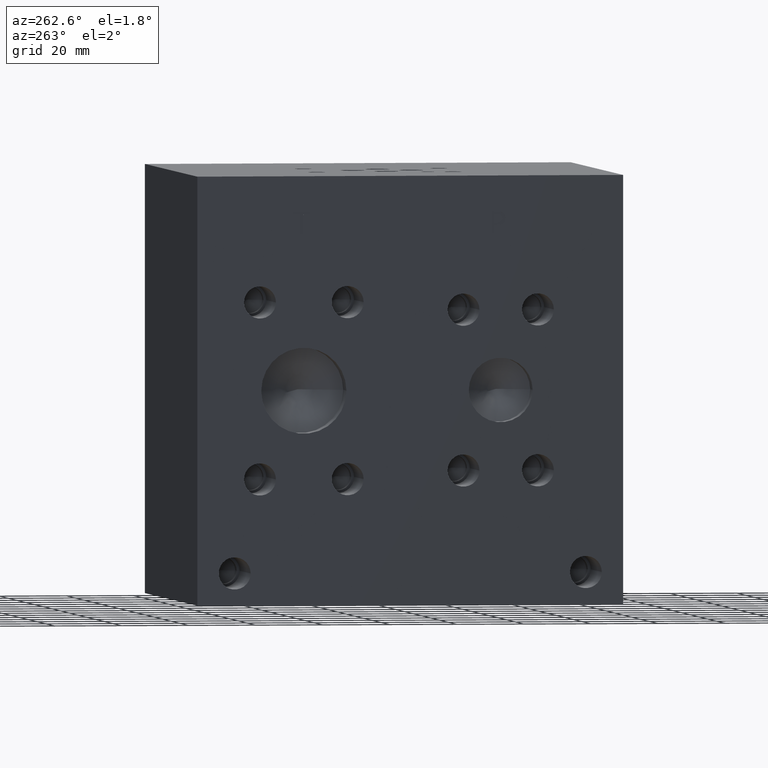
[diagram: clean part render]
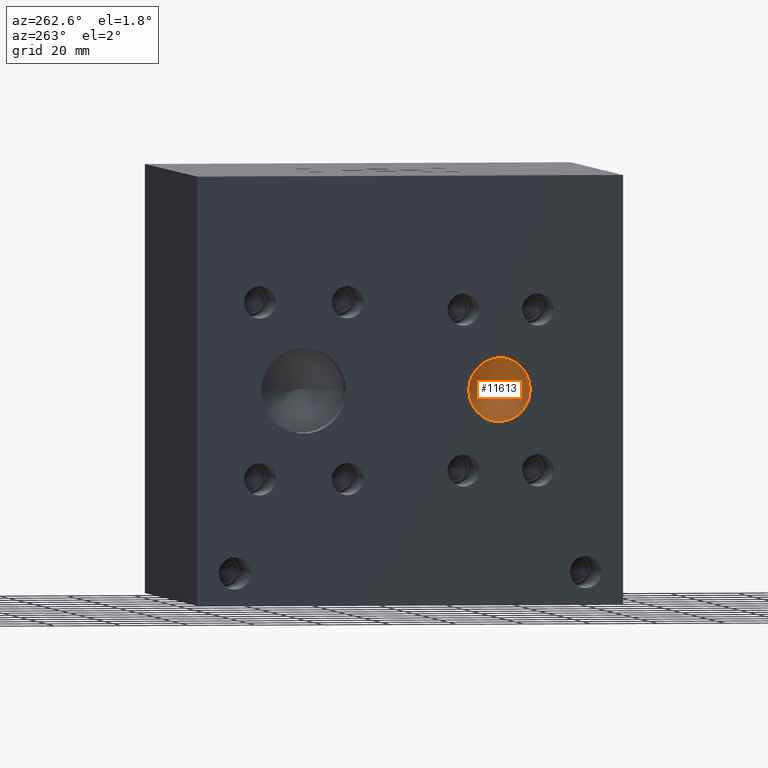
[diagram: same view with one face highlighted and labeled with its STEP entity id]
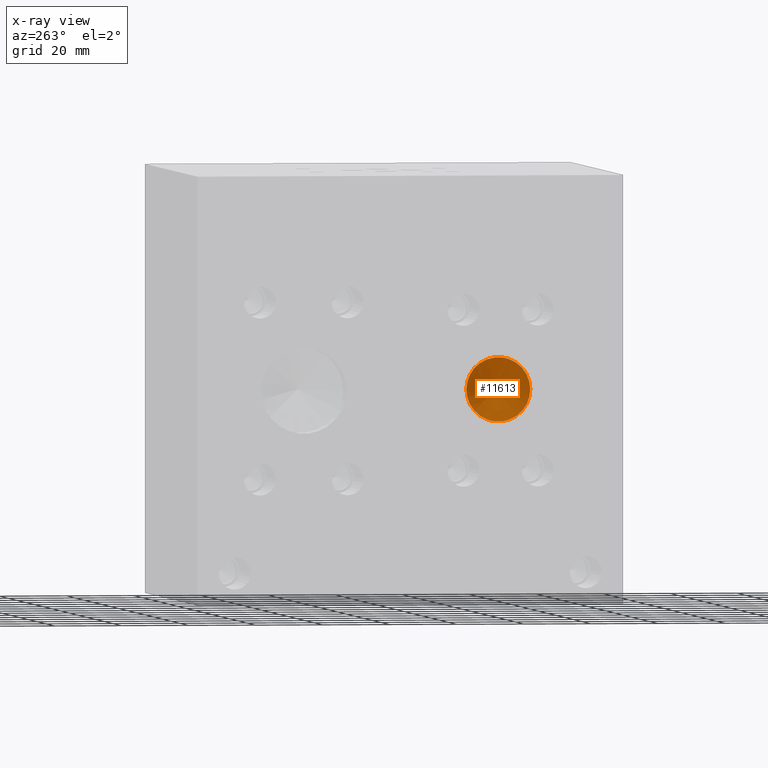
[diagram: x-ray of the same camera — body ghosted, the highlighted face saturated]
A machine part, auxiliary view. The second image highlights one B-rep face of the part: STEP entity #11613.
The next image is the same camera in x-ray: the body ghosted, the highlighted face saturated — about 0% of this face is hidden behind the body in this view.
In plain terms, the highlighted conical surface has half-angle 60 deg.
Its self-contained STEP definition (entity closure, byte-faithful):
#117=CONICAL_SURFACE('',#12291,4.7625,1.0471975511966);
#317=CIRCLE('',#12292,9.525);
#318=CIRCLE('',#12293,9.525);
#1402=FACE_OUTER_BOUND('',#2098,.T.);
#2098=EDGE_LOOP('',(#9912,#9913,#9914,#9915));
#3230=LINE('',#19526,#4321);
#4321=VECTOR('',#14683,4.7625);
#5375=VERTEX_POINT('',#19522);
#5376=VERTEX_POINT('',#19523);
#5377=VERTEX_POINT('',#19525);
#6935=EDGE_CURVE('',#5375,#5376,#317,.T.);
#6936=EDGE_CURVE('',#5376,#5377,#3230,.T.);
#6937=EDGE_CURVE('',#5376,#5375,#318,.T.);
#9912=ORIENTED_EDGE('',*,*,#6935,.T.);
#9913=ORIENTED_EDGE('',*,*,#6936,.T.);
#9914=ORIENTED_EDGE('',*,*,#6936,.F.);
#9915=ORIENTED_EDGE('',*,*,#6937,.T.);
#11613=ADVANCED_FACE('',(#1402),#117,.F.);
#12291=AXIS2_PLACEMENT_3D('',#19521,#14679,#14680);
#12292=AXIS2_PLACEMENT_3D('',#19524,#14681,#14682);
#12293=AXIS2_PLACEMENT_3D('',#19527,#14684,#14685);
#14679=DIRECTION('center_axis',(-1.,0.,0.));
#14680=DIRECTION('ref_axis',(0.,1.,0.));
#14681=DIRECTION('center_axis',(-1.,0.,0.));
#14682=DIRECTION('ref_axis',(0.,1.,0.));
#14683=DIRECTION('',(0.5,0.866025403784439,-1.06057523872491E-16));
#14684=DIRECTION('center_axis',(-1.,0.,0.));
#14685=DIRECTION('ref_axis',(0.,1.,0.));
#19521=CARTESIAN_POINT('Origin',(8.24889065701559,36.5252,63.5));
#19522=CARTESIAN_POINT('',(5.49926,46.0502,63.5));
#19523=CARTESIAN_POINT('',(5.49926,27.0002,63.5));
#19524=CARTESIAN_POINT('Origin',(5.49926,36.5252,63.5));
#19525=CARTESIAN_POINT('',(10.9985213140312,36.5252,63.5));
#19526=CARTESIAN_POINT('',(8.24889065701559,31.7627,63.5));
#19527=CARTESIAN_POINT('Origin',(5.49926,36.5252,63.5));